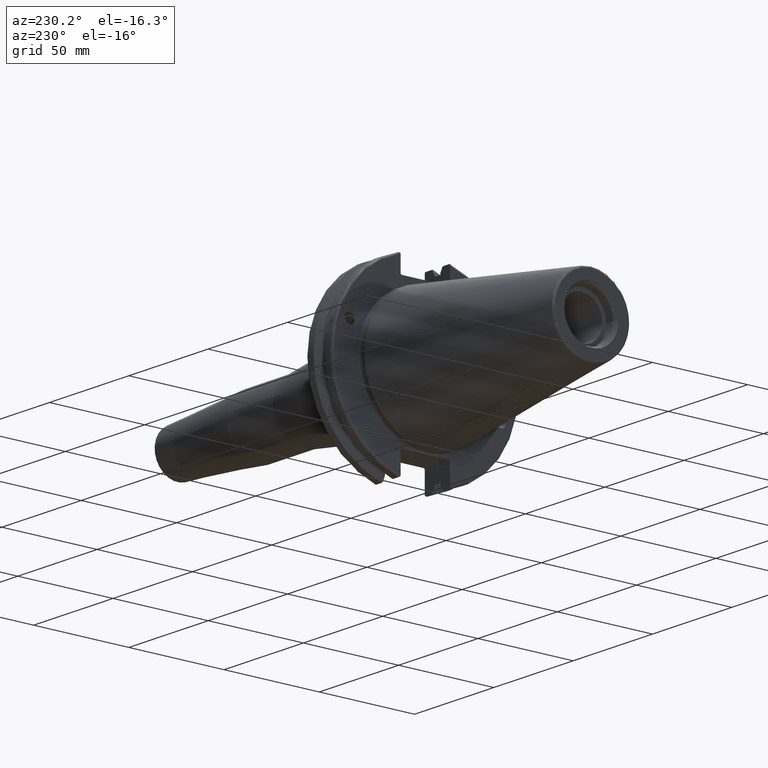
[diagram: clean part render]
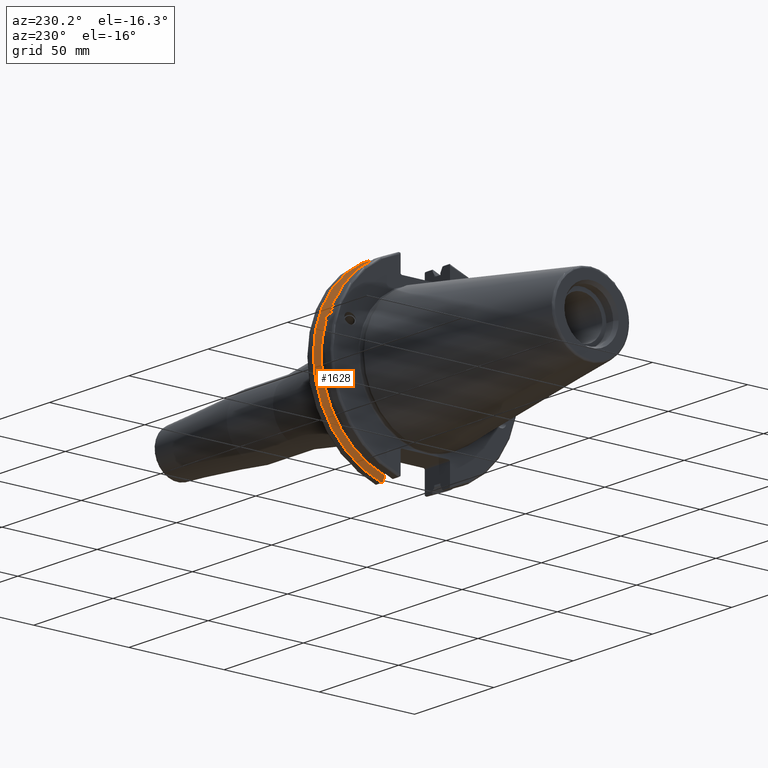
[diagram: same view with one face highlighted and labeled with its STEP entity id]
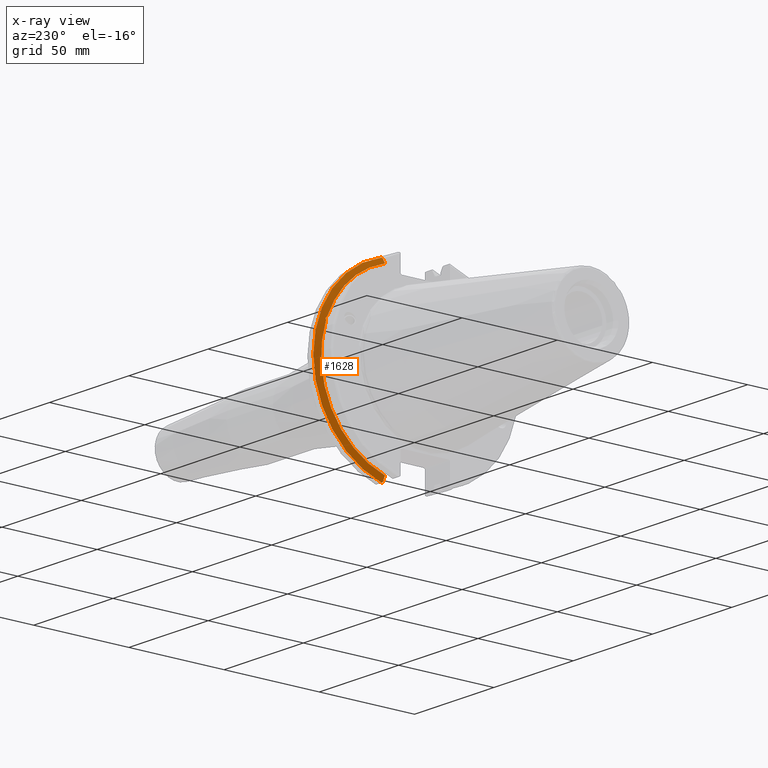
[diagram: x-ray of the same camera — body ghosted, the highlighted face saturated]
A machine part, auxiliary view. The second image highlights one B-rep face of the part: STEP entity #1628.
The next image is the same camera in x-ray: the body ghosted, the highlighted face saturated — about 0% of this face is hidden behind the body in this view.
In plain terms, the highlighted conical surface has half-angle 60 deg.
Its self-contained STEP definition (entity closure, byte-faithful):
#23=(
BOUNDED_CURVE()
B_SPLINE_CURVE(2,(#3023,#3024,#3025),.UNSPECIFIED.,.F.,.F.)
B_SPLINE_CURVE_WITH_KNOTS((3,3),(0.325260944932521,0.390084992222202),
 .UNSPECIFIED.)
CURVE()
GEOMETRIC_REPRESENTATION_ITEM()
RATIONAL_B_SPLINE_CURVE((1.00019140645994,1.00011477674864,1.))
REPRESENTATION_ITEM('')
);
#24=(
BOUNDED_CURVE()
B_SPLINE_CURVE(2,(#3037,#3038,#3039),.UNSPECIFIED.,.F.,.F.)
B_SPLINE_CURVE_WITH_KNOTS((3,3),(0.0558332664532001,0.331657177124504),
 .UNSPECIFIED.)
CURVE()
GEOMETRIC_REPRESENTATION_ITEM()
RATIONAL_B_SPLINE_CURVE((1.00012873636632,1.00038235574022,1.))
REPRESENTATION_ITEM('')
);
#29=(
BOUNDED_CURVE()
B_SPLINE_CURVE(2,(#3202,#3203,#3204),.UNSPECIFIED.,.F.,.F.)
B_SPLINE_CURVE_WITH_KNOTS((3,3),(0.,0.275823910671402),.UNSPECIFIED.)
CURVE()
GEOMETRIC_REPRESENTATION_ITEM()
RATIONAL_B_SPLINE_CURVE((1.,1.00038235574129,1.00012873636668))
REPRESENTATION_ITEM('')
);
#30=(
BOUNDED_CURVE()
B_SPLINE_CURVE(2,(#3219,#3220,#3221),.UNSPECIFIED.,.F.,.F.)
B_SPLINE_CURVE_WITH_KNOTS((3,3),(0.,0.0648240472897064),.UNSPECIFIED.)
CURVE()
GEOMETRIC_REPRESENTATION_ITEM()
RATIONAL_B_SPLINE_CURVE((1.,1.00011477674844,1.00019140645961))
REPRESENTATION_ITEM('')
);
#48=B_SPLINE_CURVE_WITH_KNOTS('',3,(#2812,#2813,#2814,#2815,#2816,#2817,
#2818,#2819),.UNSPECIFIED.,.F.,.F.,(4,2,2,4),(0.426712868358719,0.441644498666905,
0.480313313223129,0.518982127779353),.UNSPECIFIED.);
#52=B_SPLINE_CURVE_WITH_KNOTS('',3,(#2874,#2875,#2876,#2877,#2878,#2879,
#2880,#2881),.UNSPECIFIED.,.F.,.F.,(4,2,2,4),(0.518982127779353,0.557650942335576,
0.5963197568918,0.611251387199989),.UNSPECIFIED.);
#251=FACE_OUTER_BOUND('',#364,.T.);
#364=EDGE_LOOP('',(#1471,#1472,#1473,#1474,#1475,#1476,#1477,#1478,#1479));
#621=CIRCLE('',#1750,46.4219772964944);
#647=CIRCLE('',#1814,49.2125);
#650=CIRCLE('',#1822,46.4219772964944);
#734=VERTEX_POINT('',#2809);
#735=VERTEX_POINT('',#2811);
#742=VERTEX_POINT('',#2872);
#751=VERTEX_POINT('',#2913);
#781=VERTEX_POINT('',#3020);
#782=VERTEX_POINT('',#3022);
#807=VERTEX_POINT('',#3199);
#808=VERTEX_POINT('',#3201);
#811=VERTEX_POINT('',#3217);
#918=EDGE_CURVE('',#735,#734,#48,.T.);
#926=EDGE_CURVE('',#734,#742,#52,.T.);
#938=EDGE_CURVE('',#751,#735,#621,.T.);
#979=EDGE_CURVE('',#781,#782,#23,.T.);
#984=EDGE_CURVE('',#781,#751,#24,.T.);
#1029=EDGE_CURVE('',#808,#807,#29,.T.);
#1037=EDGE_CURVE('',#811,#807,#30,.T.);
#1038=EDGE_CURVE('',#782,#811,#647,.T.);
#1044=EDGE_CURVE('',#742,#808,#650,.T.);
#1471=ORIENTED_EDGE('',*,*,#918,.T.);
#1472=ORIENTED_EDGE('',*,*,#926,.T.);
#1473=ORIENTED_EDGE('',*,*,#1044,.T.);
#1474=ORIENTED_EDGE('',*,*,#1029,.T.);
#1475=ORIENTED_EDGE('',*,*,#1037,.F.);
#1476=ORIENTED_EDGE('',*,*,#1038,.F.);
#1477=ORIENTED_EDGE('',*,*,#979,.F.);
#1478=ORIENTED_EDGE('',*,*,#984,.T.);
#1479=ORIENTED_EDGE('',*,*,#938,.T.);
#1544=CONICAL_SURFACE('',#1821,47.8172386482472,1.0471975511966);
#1628=ADVANCED_FACE('',(#251),#1544,.T.);
#1750=AXIS2_PLACEMENT_3D('',#2914,#2060,#2061);
#1814=AXIS2_PLACEMENT_3D('',#3223,#2237,#2238);
#1821=AXIS2_PLACEMENT_3D('',#3236,#2254,#2255);
#1822=AXIS2_PLACEMENT_3D('',#3237,#2256,#2257);
#2060=DIRECTION('center_axis',(1.,0.,0.));
#2061=DIRECTION('ref_axis',(0.,0.,-1.));
#2237=DIRECTION('center_axis',(1.,0.,0.));
#2238=DIRECTION('ref_axis',(0.,0.,-1.));
#2254=DIRECTION('center_axis',(1.,0.,0.));
#2255=DIRECTION('ref_axis',(0.,1.,0.));
#2256=DIRECTION('center_axis',(1.,0.,0.));
#2257=DIRECTION('ref_axis',(0.,0.,-1.));
#2809=CARTESIAN_POINT('',(13.2341,43.923494649906,15.9868446375166));
#2811=CARTESIAN_POINT('',(13.0491,43.9096390749305,15.0646464421033));
#2812=CARTESIAN_POINT('Ctrl Pts',(13.0491,43.9096390749305,15.0646464421033));
#2813=CARTESIAN_POINT('Ctrl Pts',(13.0660815609661,43.9250360001461,15.1104047527575));
#2814=CARTESIAN_POINT('Ctrl Pts',(13.0821132459668,43.9385582852181,15.1564111356409));
#2815=CARTESIAN_POINT('Ctrl Pts',(13.1358132615496,43.9797830409459,15.3217566390709));
#2816=CARTESIAN_POINT('Ctrl Pts',(13.1719838933644,43.9989016655819,15.4570249042868));
#2817=CARTESIAN_POINT('Ctrl Pts',(13.2212913174802,43.9931221605126,15.7289849146254));
#2818=CARTESIAN_POINT('Ctrl Pts',(13.2341,43.9675796948952,15.8657219718732));
#2819=CARTESIAN_POINT('Ctrl Pts',(13.2341,43.923494649906,15.9868446375166));
#2872=CARTESIAN_POINT('',(13.0491,43.3201030900029,16.684383248648));
#2874=CARTESIAN_POINT('Ctrl Pts',(13.2341,43.923494649906,15.9868446375166));
#2875=CARTESIAN_POINT('Ctrl Pts',(13.2341,43.8794096049169,16.10796730316));
#2876=CARTESIAN_POINT('Ctrl Pts',(13.2212913174802,43.8110833825827,16.2291323464527));
#2877=CARTESIAN_POINT('Ctrl Pts',(13.1719838933644,43.6406982153492,16.441180795372));
#2878=CARTESIAN_POINT('Ctrl Pts',(13.1358132615496,43.5391037343221,16.5325130832406));
#2879=CARTESIAN_POINT('Ctrl Pts',(13.0821132459668,43.4012416983557,16.6326763251437));
#2880=CARTESIAN_POINT('Ctrl Pts',(13.0660815609661,43.3613106941341,16.6592273018006));
#2881=CARTESIAN_POINT('Ctrl Pts',(13.0491,43.3201030900029,16.684383248648));
#2913=CARTESIAN_POINT('',(13.0491,12.95,-44.5791147973605));
#2914=CARTESIAN_POINT('Origin',(13.0491,0.,0.));
#3020=CARTESIAN_POINT('',(14.3818103943757,12.95,-46.9780755322918));
#3022=CARTESIAN_POINT('',(14.6602090340487,13.4317035994433,-47.3440544806494));
#3023=CARTESIAN_POINT('Ctrl Pts',(14.3818103943757,12.95,-46.9780755322918));
#3024=CARTESIAN_POINT('Ctrl Pts',(14.5199310333617,13.1896660169965,-47.1601640966264));
#3025=CARTESIAN_POINT('Ctrl Pts',(14.6602090340487,13.4317035994433,-47.3440544806494));
#3037=CARTESIAN_POINT('Ctrl Pts',(14.3818103943757,12.95,-46.9780755322918));
#3038=CARTESIAN_POINT('Ctrl Pts',(13.6979955094851,12.95,-45.7494966802933));
#3039=CARTESIAN_POINT('Ctrl Pts',(13.0491,12.95,-44.5791147973604));
#3199=CARTESIAN_POINT('',(14.3818103943757,12.95,46.9780755322918));
#3201=CARTESIAN_POINT('',(13.0491,12.95,44.5791147973604));
#3202=CARTESIAN_POINT('Ctrl Pts',(13.0491,12.95,44.5791147973604));
#3203=CARTESIAN_POINT('Ctrl Pts',(13.6979955094846,12.95,45.7494966802924));
#3204=CARTESIAN_POINT('Ctrl Pts',(14.3818103943757,12.95,46.9780755322918));
#3217=CARTESIAN_POINT('',(14.6602090340487,13.4317035994433,47.3440544806494));
#3219=CARTESIAN_POINT('Ctrl Pts',(14.6602090340487,13.4317035994433,47.3440544806494));
#3220=CARTESIAN_POINT('Ctrl Pts',(14.5199310333618,13.1896660169966,47.1601640966264));
#3221=CARTESIAN_POINT('Ctrl Pts',(14.3818103943757,12.95,46.9780755322918));
#3223=CARTESIAN_POINT('Origin',(14.6602090340487,0.,0.));
#3236=CARTESIAN_POINT('Origin',(13.8546545170244,0.,0.));
#3237=CARTESIAN_POINT('Origin',(13.0491,0.,0.));